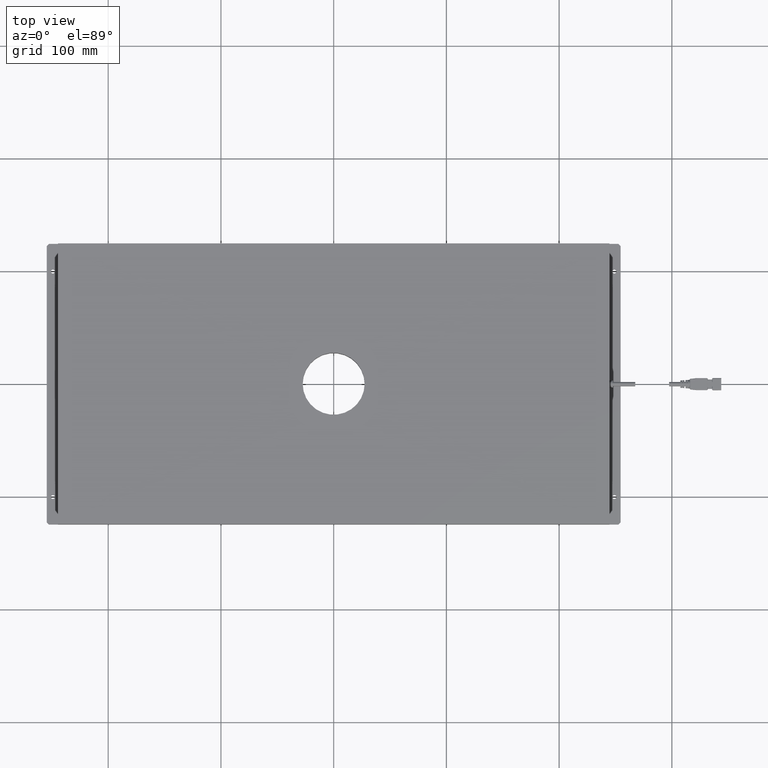
[diagram: clean part render]
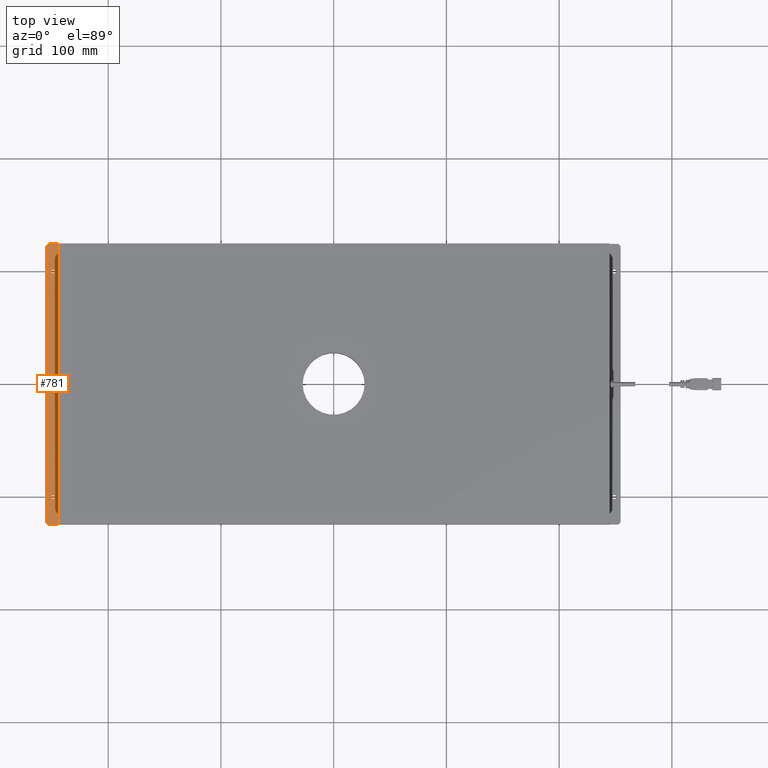
[diagram: same view with one face highlighted and labeled with its STEP entity id]
A machine part, top view. The second image highlights one B-rep face of the part: STEP entity #781.
In plain terms, the highlighted planar face has unit normal (0, 0, -1).
Its self-contained STEP definition (entity closure, byte-faithful):
#781=ADVANCED_FACE('0:271',(#2126,#2127,#2128),#2129,.F.);
#2126=FACE_OUTER_BOUND('',#3913,.T.);
#2127=FACE_BOUND('',#3914,.T.);
#2128=FACE_BOUND('',#3915,.T.);
#2129=PLANE('',#3916);
#3913=EDGE_LOOP('',(#7102,#7103,#7104,#7105,#7106,#7107));
#3914=EDGE_LOOP('',(#7108));
#3915=EDGE_LOOP('',(#7109));
#3916=AXIS2_PLACEMENT_3D('',#7110,#7111,#7112);
#7102=ORIENTED_EDGE('',*,*,#9415,.T.);
#7103=ORIENTED_EDGE('',*,*,#9480,.T.);
#7104=ORIENTED_EDGE('',*,*,#9382,.F.);
#7105=ORIENTED_EDGE('',*,*,#9437,.T.);
#7106=ORIENTED_EDGE('',*,*,#9406,.T.);
#7107=ORIENTED_EDGE('',*,*,#9471,.T.);
#7108=ORIENTED_EDGE('',*,*,#9481,.F.);
#7109=ORIENTED_EDGE('',*,*,#9478,.F.);
#7110=CARTESIAN_POINT('',(-0.2545,-0.1245,0.00299999999999956));
#7111=DIRECTION('',(0.0,3.49148336110938E-15,-1.0));
#7112=DIRECTION('',(0.0,1.0,3.49148336110938E-15));
#9382=EDGE_CURVE('0:400',#9849,#9851,#9852,.T.);
#9406=EDGE_CURVE('0:916',#9887,#9888,#9889,.T.);
#9415=EDGE_CURVE('0:907',#9902,#9900,#9903,.T.);
#9437=EDGE_CURVE('0:913',#9849,#9887,#9935,.T.);
#9471=EDGE_CURVE('0:919',#9888,#9902,#9977,.T.);
#9478=EDGE_CURVE('0:925',#9985,#9985,#9986,.T.);
#9480=EDGE_CURVE('0:910',#9900,#9851,#9988,.T.);
#9481=EDGE_CURVE('0:922',#9989,#9989,#9990,.T.);
#9849=VERTEX_POINT('',#10434);
#9851=VERTEX_POINT('',#10437);
#9852=LINE('',#10438,#10439);
#9887=VERTEX_POINT('',#10491);
#9888=VERTEX_POINT('',#10492);
#9889=LINE('',#10493,#10494);
#9900=VERTEX_POINT('',#10510);
#9902=VERTEX_POINT('',#10513);
#9903=LINE('',#10514,#10515);
#9935=LINE('',#10564,#10565);
#9977=LINE('',#10629,#10630);
#9985=VERTEX_POINT('',#10640);
#9986=CIRCLE('',#10641,0.00175);
#9988=LINE('',#10643,#10644);
#9989=VERTEX_POINT('',#10645);
#9990=CIRCLE('',#10646,0.00175);
#10434=CARTESIAN_POINT('',(-0.2525,0.1245,0.00300000000000043));
#10437=CARTESIAN_POINT('',(-0.2445,0.1245,0.00300000000000043));
#10438=CARTESIAN_POINT('',(-0.2525,0.1245,0.00300000000000043));
#10439=VECTOR('',#11031,1.0);
#10491=CARTESIAN_POINT('',(-0.2545,0.1225,0.00300000000000043));
#10492=CARTESIAN_POINT('',(-0.2545,-0.1225,0.00299999999999957));
#10493=CARTESIAN_POINT('',(-0.2545,0.1225,0.00300000000000043));
#10494=VECTOR('',#11049,1.0);
#10510=CARTESIAN_POINT('',(-0.2445,-0.1245,0.00299999999999956));
#10513=CARTESIAN_POINT('',(-0.2525,-0.1245,0.00299999999999956));
#10514=CARTESIAN_POINT('',(-0.2525,-0.1245,0.00299999999999956));
#10515=VECTOR('',#11056,1.0);
#10564=CARTESIAN_POINT('',(-0.2525,0.1245,0.00300000000000043));
#10565=VECTOR('',#11074,1.0);
#10629=CARTESIAN_POINT('',(-0.2545,-0.1225,0.00299999999999957));
#10630=VECTOR('',#11097,1.0);
#10640=CARTESIAN_POINT('',(-0.25075,-0.1,0.00299999999999965));
#10641=AXIS2_PLACEMENT_3D('',#11100,#11101,#11102);
#10643=CARTESIAN_POINT('',(-0.2445,-0.1245,0.00299999999999956));
#10644=VECTOR('',#11103,1.0);
#10645=CARTESIAN_POINT('',(-0.25075,0.1,0.00300000000000035));
#10646=AXIS2_PLACEMENT_3D('',#11104,#11105,#11106);
#11031=DIRECTION('',(1.0,0.0,0.0));
#11049=DIRECTION('',(0.0,-1.0,-3.49148336110938E-15));
#11056=DIRECTION('',(1.0,0.0,0.0));
#11074=DIRECTION('',(-0.707106781186548,-0.707106781186548,-2.46885156104044E-15));
#11097=DIRECTION('',(0.707106781186548,-0.707106781186548,-2.46885156104044E-15));
#11100=CARTESIAN_POINT('',(-0.249,-0.1,0.00299999999999965));
#11101=DIRECTION('',(0.0,-3.49148336110938E-15,1.0));
#11102=DIRECTION('',(-1.0,0.0,0.0));
#11103=DIRECTION('',(0.0,1.0,3.49148336110938E-15));
#11104=CARTESIAN_POINT('',(-0.249,0.1,0.00300000000000035));
#11105=DIRECTION('',(0.0,-3.49148336110938E-15,1.0));
#11106=DIRECTION('',(-1.0,0.0,0.0));